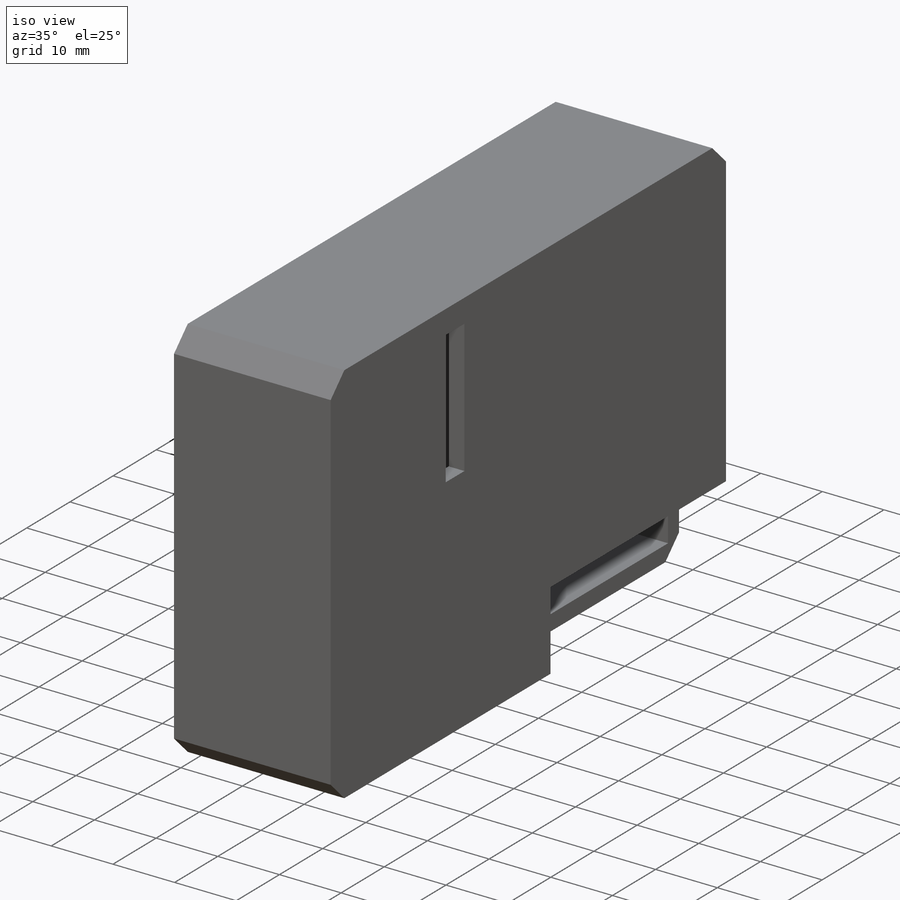
[diagram: iso view]
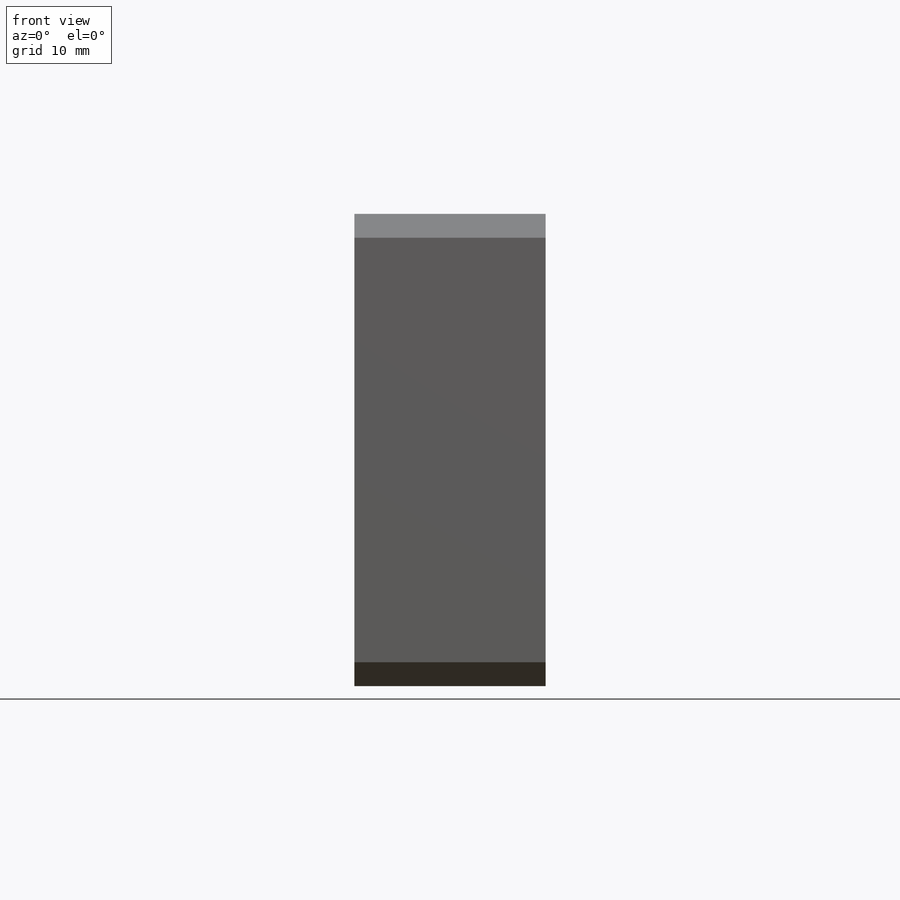
[diagram: front view]
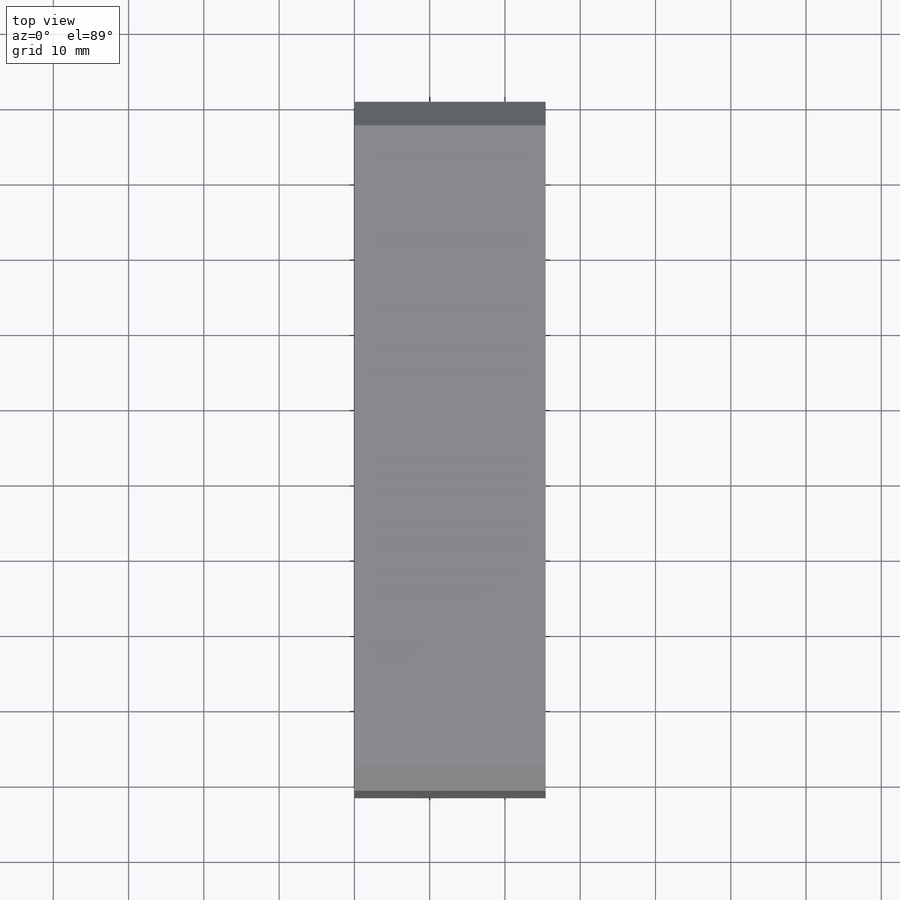
[diagram: top view]
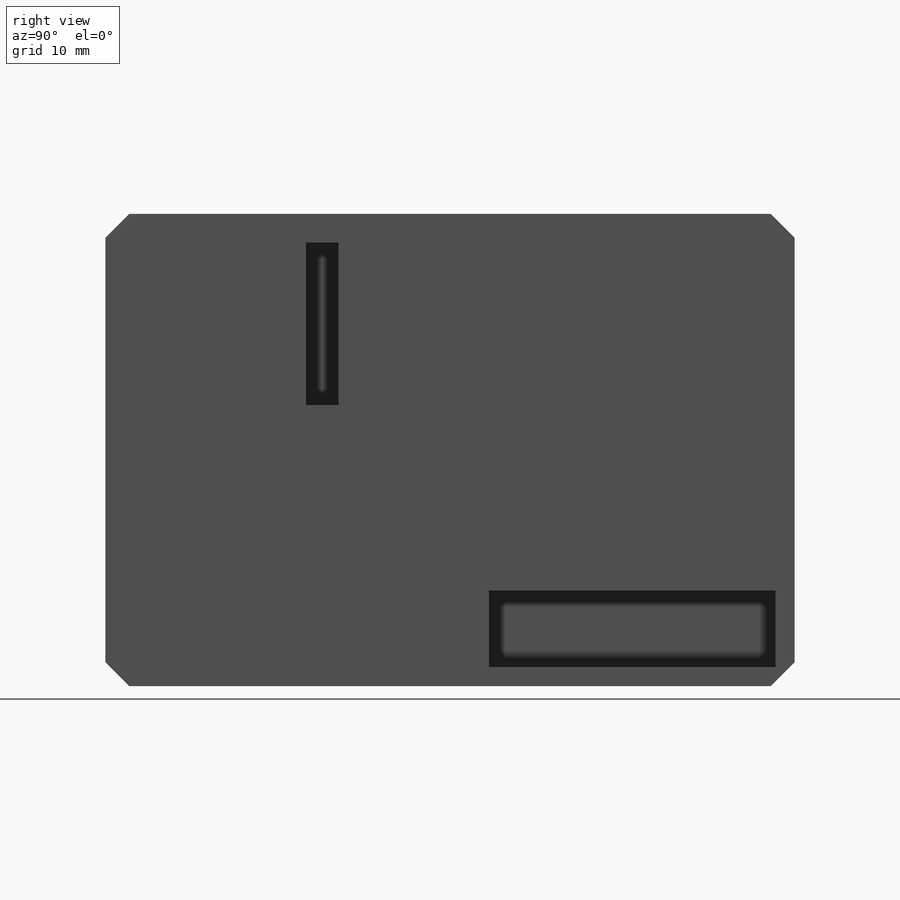
[diagram: right view]
SOLIDWORKS PART (.sldprt)
format: sldprt  version: not decoded by parser v0  size: 228,864 bytes
history: native  units: mm
features: sketch x5, surface_op x3, cut_extrude x2, material x1, chamfer x1 (+11 scaffold rows collapsed)
feature tree (23):
  scaffold x11  (default folders/planes/origin — collapsed)
  material  "Material <not specified>"
  sketch  "Sketch2"  dims[D1=62.738mm]
  surface_op  "Surface-Extrude1"
  sketch  "Sketch6"
  surface_op  "Surface-Extrude2"
  sketch  "Sketch7"
  surface_op  "Surface-Extrude3"
  chamfer  "Chamfer2"  Distance=3.175mm Angle=45deg
  sketch  "Sketch10"  dims[D1=12.7mm D2=40.64mm]
  cut_extrude  "Cut-Extrude2"  Depth=7.62mm
  sketch  "Sketch11"  dims[D1=26.67mm D2=3.81mm D3=21.59mm D4=4.318mm]
  cut_extrude  "Cut-Extrude3"  [1 undecoded]
decode coverage: 5 of 11 modeling features carry decoded parameters
note: 1 parameter value undecoded
note: suppression state not decoded; provenance and decode notes live in map.json
